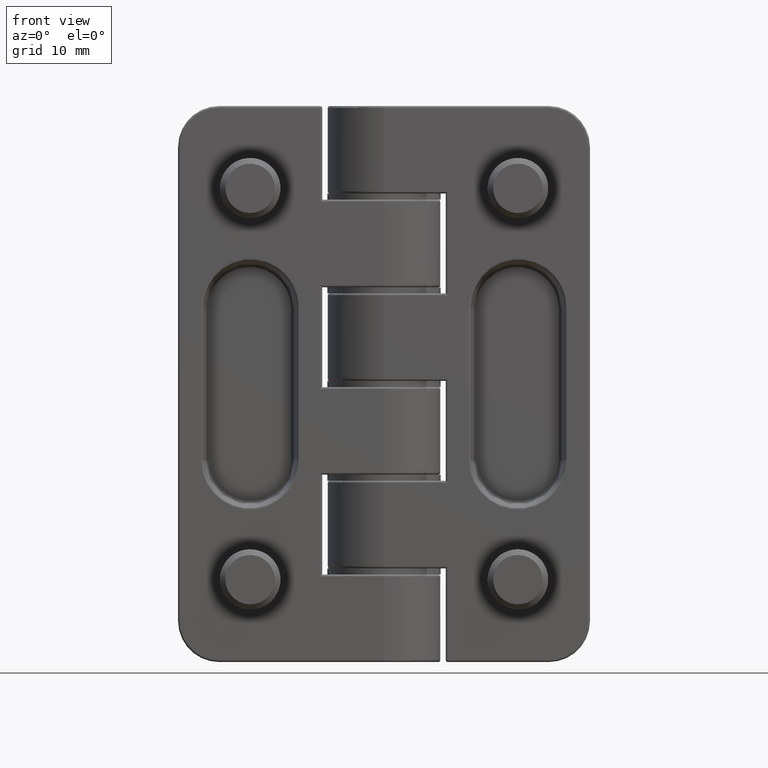
[diagram: clean part render]
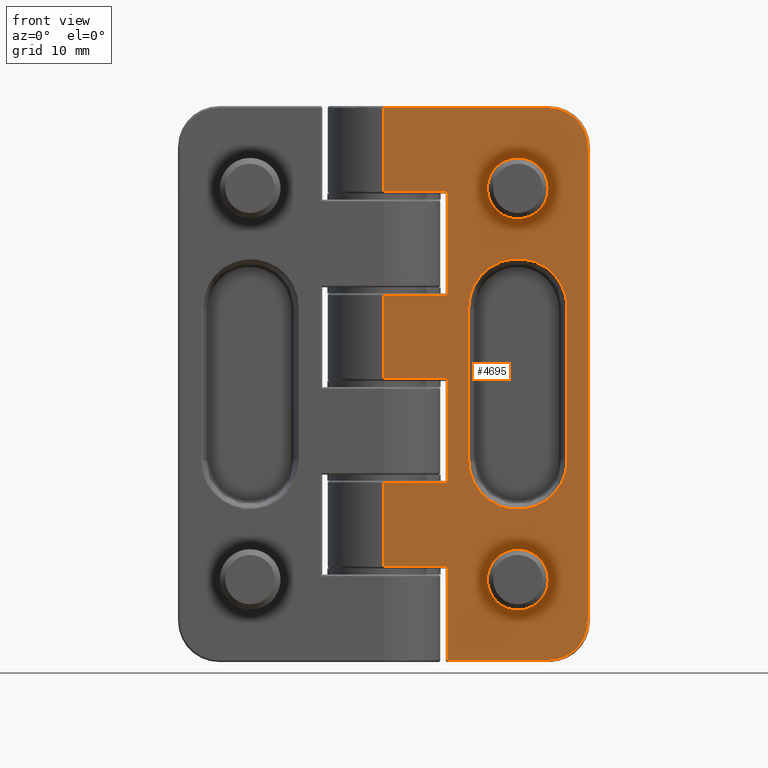
[diagram: same view with one face highlighted and labeled with its STEP entity id]
A machine part, front view. The second image highlights one B-rep face of the part: STEP entity #4695.
In plain terms, the highlighted planar face has unit normal (0, -1, 0).
Its self-contained STEP definition (entity closure, byte-faithful):
#114=FACE_BOUND('',#1021,.T.);
#115=FACE_BOUND('',#1022,.T.);
#116=FACE_BOUND('',#1023,.T.);
#197=LINE('',#17166,#405);
#199=LINE('',#17174,#407);
#201=LINE('',#17180,#409);
#202=LINE('',#17182,#410);
#203=LINE('',#17184,#411);
#204=LINE('',#17186,#412);
#205=LINE('',#17188,#413);
#206=LINE('',#17192,#414);
#207=LINE('',#17196,#415);
#208=LINE('',#17198,#416);
#209=LINE('',#17200,#417);
#210=LINE('',#17202,#418);
#211=LINE('',#17204,#419);
#212=LINE('',#17206,#420);
#213=LINE('',#17208,#421);
#214=LINE('',#17209,#422);
#405=VECTOR('',#5524,14.8);
#407=VECTOR('',#5536,14.8);
#409=VECTOR('',#5542,6.2);
#410=VECTOR('',#5543,8.10000000000001);
#411=VECTOR('',#5544,6.2);
#412=VECTOR('',#5545,9.09999999999999);
#413=VECTOR('',#5546,9.8);
#414=VECTOR('',#5549,46.);
#415=VECTOR('',#5552,16.);
#416=VECTOR('',#5553,8.1);
#417=VECTOR('',#5554,6.2);
#418=VECTOR('',#5555,10.1);
#419=VECTOR('',#5556,6.2);
#420=VECTOR('',#5557,8.10000000000001);
#421=VECTOR('',#5558,6.2);
#422=VECTOR('',#5559,10.1);
#656=PLANE('',#4989);
#753=FACE_OUTER_BOUND('',#1020,.T.);
#1020=EDGE_LOOP('',(#3345,#3346,#3347,#3348,#3349,#3350,#3351,#3352,#3353,
#3354,#3355,#3356,#3357,#3358,#3359,#3360));
#1021=EDGE_LOOP('',(#3361,#3362,#3363,#3364));
#1022=EDGE_LOOP('',(#3365,#3366,#3367,#3368,#3369));
#1023=EDGE_LOOP('',(#3370,#3371,#3372,#3373));
#1330=CIRCLE('',#4946,2.942);
#1333=CIRCLE('',#4950,2.37175);
#1334=CIRCLE('',#4952,2.942);
#1336=CIRCLE('',#4955,2.37175);
#1351=CIRCLE('',#4980,4.77345908033901);
#1354=CIRCLE('',#4985,4.77345908033901);
#1356=CIRCLE('',#4990,3.8);
#1357=CIRCLE('',#4991,3.8);
#1664=B_SPLINE_CURVE_WITH_KNOTS('',3,(#15838,#15839,#15840,#15841,#15842,
#15843,#15844,#15845,#15846,#15847,#15848,#15849,#15850,#15851,#15852,#15853,
#15854,#15855,#15856,#15857,#15858,#15859,#15860,#15861,#15862,#15863,#15864,
#15865,#15866,#15867,#15868,#15869,#15870,#15871,#15872,#15873,#15874,#15875,
#15876,#15877,#15878,#15879,#15880,#15881,#15882,#15883,#15884,#15885,#15886,
#15887,#15888,#15889,#15890,#15891,#15892,#15893,#15894,#15895,#15896,#15897,
#15898,#15899,#15900,#15901),.UNSPECIFIED.,.F.,.F.,(4,3,3,3,3,3,3,3,3,3,
3,3,3,3,3,3,3,3,3,3,3,4),(-0.555272788399404,-0.532672486366689,-0.507874511396308,
-0.49913641180638,-0.491882568340282,-0.48698173098035,-0.461058985048417,
-0.438376582357975,-0.426604669968689,-0.422113840899168,-0.346297641734306,
-0.32962317218195,-0.325471987866625,-0.321107530800513,-0.293195790396058,
-0.279599763524881,-0.225100617131291,-0.22079372348938,-0.216654267491526,
-0.11424069408634,-0.10959335427989,0.),.UNSPECIFIED.);
#1665=B_SPLINE_CURVE_WITH_KNOTS('',3,(#15902,#15903,#15904,#15905),
 .UNSPECIFIED.,.F.,.F.,(4,4),(-0.0112716551158977,0.),.UNSPECIFIED.);
#1666=B_SPLINE_CURVE_WITH_KNOTS('',3,(#16218,#16219,#16220,#16221,#16222,
#16223,#16224,#16225,#16226,#16227,#16228,#16229,#16230,#16231,#16232,#16233,
#16234,#16235,#16236,#16237,#16238,#16239,#16240,#16241,#16242,#16243,#16244,
#16245,#16246,#16247,#16248,#16249,#16250,#16251,#16252,#16253,#16254,#16255,
#16256,#16257,#16258,#16259,#16260,#16261,#16262,#16263,#16264,#16265,#16266,
#16267,#16268,#16269,#16270,#16271,#16272,#16273,#16274,#16275,#16276,#16277,
#16278,#16279,#16280,#16281),.UNSPECIFIED.,.F.,.F.,(4,3,3,3,3,3,3,3,3,3,
3,3,3,3,3,3,3,3,3,3,3,4),(-0.552745378375047,-0.525265029046958,-0.495831196152874,
-0.479661784903317,-0.47208614214534,-0.418869029967583,-0.408292252417718,
-0.401945906381529,-0.397412510122252,-0.313878618295944,-0.297711251109755,
-0.291373116164104,-0.264563284144036,-0.249640589169738,-0.194473477234113,
-0.189297918925134,-0.109868419679923,-0.101893771205644,-0.0951262541075995,
-0.0911909814845817,-0.0160898264401455,0.),.UNSPECIFIED.);
#1670=B_SPLINE_CURVE_WITH_KNOTS('',3,(#16696,#16697,#16698,#16699,#16700,
#16701,#16702,#16703,#16704,#16705,#16706,#16707,#16708,#16709,#16710,#16711,
#16712,#16713,#16714,#16715,#16716,#16717,#16718,#16719,#16720,#16721,#16722,
#16723,#16724,#16725,#16726,#16727,#16728,#16729,#16730,#16731,#16732,#16733,
#16734,#16735,#16736,#16737,#16738,#16739,#16740,#16741,#16742,#16743,#16744,
#16745,#16746,#16747,#16748,#16749,#16750,#16751,#16752,#16753),
 .UNSPECIFIED.,.F.,.F.,(4,3,3,3,3,3,3,3,3,3,3,3,3,3,3,3,3,3,3,4),(-0.555272788399396,
-0.532672486366683,-0.507875903701008,-0.499139532064783,-0.491898868422727,
-0.487007117829045,-0.438396019164007,-0.426639047629717,-0.422135080882545,
-0.346314807461434,-0.329636046477296,-0.325051695832608,-0.321041890336689,
-0.279599763524882,-0.225101994027732,-0.220794784124101,-0.216654428277234,
-0.114244424912385,-0.109592609514556,0.),.UNSPECIFIED.);
#1671=B_SPLINE_CURVE_WITH_KNOTS('',3,(#17066,#17067,#17068,#17069,#17070,
#17071,#17072,#17073,#17074,#17075,#17076,#17077,#17078,#17079,#17080,#17081,
#17082,#17083,#17084,#17085,#17086,#17087,#17088,#17089,#17090,#17091,#17092,
#17093,#17094,#17095,#17096,#17097,#17098,#17099,#17100,#17101,#17102,#17103,
#17104,#17105,#17106,#17107,#17108,#17109,#17110,#17111,#17112,#17113,#17114,
#17115,#17116,#17117,#17118,#17119,#17120),.UNSPECIFIED.,.F.,.F.,(4,3,3,
3,3,3,3,3,3,3,3,3,3,3,3,3,3,3,4),(-0.552745378375034,-0.525265029046942,
-0.479662240831494,-0.472086169217545,-0.41886906149072,-0.408292281970658,
-0.401947045536937,-0.397413558662455,-0.297717371381316,-0.291370633131909,
-0.249640589169726,-0.194474137875694,-0.18929792903079,-0.109866335501049,
-0.101890187807039,-0.0951161422711682,-0.0911820112457902,-0.0160751570081444,
0.),.UNSPECIFIED.);
#1849=VERTEX_POINT('',#6637);
#1850=VERTEX_POINT('',#6644);
#1885=VERTEX_POINT('',#9017);
#1886=VERTEX_POINT('',#9037);
#1893=VERTEX_POINT('',#10886);
#1894=VERTEX_POINT('',#10893);
#1920=VERTEX_POINT('',#11408);
#1922=VERTEX_POINT('',#11740);
#1936=VERTEX_POINT('',#15837);
#1949=VERTEX_POINT('',#17157);
#1950=VERTEX_POINT('',#17159);
#1952=VERTEX_POINT('',#17164);
#1953=VERTEX_POINT('',#17169);
#1954=VERTEX_POINT('',#17178);
#1955=VERTEX_POINT('',#17179);
#1956=VERTEX_POINT('',#17181);
#1957=VERTEX_POINT('',#17183);
#1958=VERTEX_POINT('',#17185);
#1959=VERTEX_POINT('',#17187);
#1960=VERTEX_POINT('',#17189);
#1961=VERTEX_POINT('',#17191);
#1962=VERTEX_POINT('',#17193);
#1963=VERTEX_POINT('',#17195);
#1964=VERTEX_POINT('',#17197);
#1965=VERTEX_POINT('',#17199);
#1966=VERTEX_POINT('',#17201);
#1967=VERTEX_POINT('',#17203);
#1968=VERTEX_POINT('',#17205);
#1969=VERTEX_POINT('',#17207);
#2377=EDGE_CURVE('',#1850,#1849,#1330,.T.);
#2413=EDGE_CURVE('',#1886,#1885,#1333,.T.);
#2421=EDGE_CURVE('',#1894,#1893,#1334,.T.);
#2449=EDGE_CURVE('',#1922,#1920,#1336,.T.);
#2467=EDGE_CURVE('',#1936,#1894,#1664,.T.);
#2468=EDGE_CURVE('',#1936,#1920,#1665,.T.);
#2469=EDGE_CURVE('',#1893,#1922,#1666,.T.);
#2474=EDGE_CURVE('',#1885,#1850,#1670,.T.);
#2475=EDGE_CURVE('',#1849,#1886,#1671,.T.);
#2495=EDGE_CURVE('',#1950,#1949,#1351,.T.);
#2497=EDGE_CURVE('',#1952,#1950,#197,.T.);
#2500=EDGE_CURVE('',#1953,#1952,#1354,.T.);
#2502=EDGE_CURVE('',#1949,#1953,#199,.T.);
#2504=EDGE_CURVE('',#1954,#1955,#201,.T.);
#2505=EDGE_CURVE('',#1954,#1956,#202,.T.);
#2506=EDGE_CURVE('',#1957,#1956,#203,.T.);
#2507=EDGE_CURVE('',#1958,#1957,#204,.T.);
#2508=EDGE_CURVE('',#1959,#1958,#205,.T.);
#2509=EDGE_CURVE('',#1960,#1959,#1356,.T.);
#2510=EDGE_CURVE('',#1961,#1960,#206,.T.);
#2511=EDGE_CURVE('',#1962,#1961,#1357,.T.);
#2512=EDGE_CURVE('',#1963,#1962,#207,.T.);
#2513=EDGE_CURVE('',#1963,#1964,#208,.T.);
#2514=EDGE_CURVE('',#1965,#1964,#209,.T.);
#2515=EDGE_CURVE('',#1966,#1965,#210,.T.);
#2516=EDGE_CURVE('',#1967,#1966,#211,.T.);
#2517=EDGE_CURVE('',#1967,#1968,#212,.T.);
#2518=EDGE_CURVE('',#1969,#1968,#213,.T.);
#2519=EDGE_CURVE('',#1955,#1969,#214,.T.);
#3345=ORIENTED_EDGE('',*,*,#2504,.F.);
#3346=ORIENTED_EDGE('',*,*,#2505,.T.);
#3347=ORIENTED_EDGE('',*,*,#2506,.F.);
#3348=ORIENTED_EDGE('',*,*,#2507,.F.);
#3349=ORIENTED_EDGE('',*,*,#2508,.F.);
#3350=ORIENTED_EDGE('',*,*,#2509,.F.);
#3351=ORIENTED_EDGE('',*,*,#2510,.F.);
#3352=ORIENTED_EDGE('',*,*,#2511,.F.);
#3353=ORIENTED_EDGE('',*,*,#2512,.F.);
#3354=ORIENTED_EDGE('',*,*,#2513,.T.);
#3355=ORIENTED_EDGE('',*,*,#2514,.F.);
#3356=ORIENTED_EDGE('',*,*,#2515,.F.);
#3357=ORIENTED_EDGE('',*,*,#2516,.F.);
#3358=ORIENTED_EDGE('',*,*,#2517,.T.);
#3359=ORIENTED_EDGE('',*,*,#2518,.F.);
#3360=ORIENTED_EDGE('',*,*,#2519,.F.);
#3361=ORIENTED_EDGE('',*,*,#2377,.T.);
#3362=ORIENTED_EDGE('',*,*,#2475,.T.);
#3363=ORIENTED_EDGE('',*,*,#2413,.T.);
#3364=ORIENTED_EDGE('',*,*,#2474,.T.);
#3365=ORIENTED_EDGE('',*,*,#2421,.T.);
#3366=ORIENTED_EDGE('',*,*,#2469,.T.);
#3367=ORIENTED_EDGE('',*,*,#2449,.T.);
#3368=ORIENTED_EDGE('',*,*,#2468,.F.);
#3369=ORIENTED_EDGE('',*,*,#2467,.T.);
#3370=ORIENTED_EDGE('',*,*,#2495,.F.);
#3371=ORIENTED_EDGE('',*,*,#2497,.F.);
#3372=ORIENTED_EDGE('',*,*,#2500,.F.);
#3373=ORIENTED_EDGE('',*,*,#2502,.F.);
#4695=ADVANCED_FACE('',(#753,#114,#115,#116),#656,.T.);
#4946=AXIS2_PLACEMENT_3D('',#6645,#5442,#5443);
#4950=AXIS2_PLACEMENT_3D('',#9038,#5450,#5451);
#4952=AXIS2_PLACEMENT_3D('',#10894,#5454,#5455);
#4955=AXIS2_PLACEMENT_3D('',#11741,#5460,#5461);
#4980=AXIS2_PLACEMENT_3D('',#17161,#5518,#5519);
#4985=AXIS2_PLACEMENT_3D('',#17171,#5530,#5531);
#4989=AXIS2_PLACEMENT_3D('',#17177,#5540,#5541);
#4990=AXIS2_PLACEMENT_3D('',#17190,#5547,#5548);
#4991=AXIS2_PLACEMENT_3D('',#17194,#5550,#5551);
#5442=DIRECTION('center_axis',(-5.55111512312578E-16,1.,0.));
#5443=DIRECTION('ref_axis',(-1.,-5.55111512312578E-16,8.67361737988404E-18));
#5450=DIRECTION('center_axis',(-5.14595679172404E-16,1.,0.));
#5451=DIRECTION('ref_axis',(-1.,-5.14595679172404E-16,-7.53645649687573E-14));
#5454=DIRECTION('center_axis',(-5.55111512312578E-16,1.,0.));
#5455=DIRECTION('ref_axis',(-1.,-5.55111512312578E-16,8.67361737988404E-18));
#5460=DIRECTION('center_axis',(-7.46637162824825E-16,1.,3.85390418526894E-65));
#5461=DIRECTION('ref_axis',(-1.,-7.46637162824825E-16,-5.75766552245785E-14));
#5518=DIRECTION('center_axis',(5.55111512312578E-16,-1.,0.));
#5519=DIRECTION('ref_axis',(-2.41352831440252E-17,-1.33977735261721E-32,
1.));
#5524=DIRECTION('',(0.,0.,1.));
#5530=DIRECTION('center_axis',(5.55111512312578E-16,-1.,0.));
#5531=DIRECTION('ref_axis',(-2.41352831440252E-17,-1.33977735261721E-32,
-1.));
#5536=DIRECTION('',(2.5378112423387E-16,1.4087682366985E-31,-1.));
#5540=DIRECTION('center_axis',(5.55111512312578E-16,-1.,0.));
#5541=DIRECTION('ref_axis',(0.,0.,-1.));
#5542=DIRECTION('',(1.,5.55111512312578E-16,0.));
#5543=DIRECTION('',(0.,0.,-1.));
#5544=DIRECTION('',(-1.,-5.55111512312578E-16,0.));
#5545=DIRECTION('',(0.,0.,1.));
#5546=DIRECTION('',(-1.,-5.55111512312578E-16,0.));
#5547=DIRECTION('center_axis',(-5.55111512312578E-16,1.,0.));
#5548=DIRECTION('ref_axis',(0.707106781186547,3.92523114670943E-16,-0.707106781186548));
#5549=DIRECTION('',(0.,0.,-1.));
#5550=DIRECTION('center_axis',(-5.55111512312578E-16,1.,0.));
#5551=DIRECTION('ref_axis',(0.707106781186547,3.92523114670943E-16,0.707106781186548));
#5552=DIRECTION('',(1.,5.55111512312578E-16,0.));
#5553=DIRECTION('',(0.,0.,-1.));
#5554=DIRECTION('',(-1.,-5.55111512312578E-16,0.));
#5555=DIRECTION('',(0.,0.,1.));
#5556=DIRECTION('',(1.,5.55111512312578E-16,1.0035750557255E-16));
#5557=DIRECTION('',(0.,0.,-1.));
#5558=DIRECTION('',(-1.,-5.55111512312578E-16,0.));
#5559=DIRECTION('',(0.,0.,1.));
#6637=CARTESIAN_POINT('',(11.7092561457524,-5.50007618789231,-10.6484175058422));
#6644=CARTESIAN_POINT('',(14.2889218540532,-5.5,-10.6446255791972));
#6645=CARTESIAN_POINT('Origin',(13.,-5.5,-8.));
#9017=CARTESIAN_POINT('',(14.3769773970285,-5.5000788273421,-6.06890411668072));
#9037=CARTESIAN_POINT('',(11.622975209869,-5.5,-6.06893791144235));
#9038=CARTESIAN_POINT('Origin',(13.,-5.5,-8.));
#10886=CARTESIAN_POINT('',(11.709260361262,-5.50007867280724,-48.648408620066));
#10893=CARTESIAN_POINT('',(14.2889218540532,-5.5,-48.6446255791972));
#10894=CARTESIAN_POINT('Origin',(13.,-5.5,-46.));
#11408=CARTESIAN_POINT('',(14.35556981525,-5.5,-44.0538169308919));
#11740=CARTESIAN_POINT('',(11.622975209869,-5.5,-44.0689379114423));
#11741=CARTESIAN_POINT('Origin',(13.,-5.5,-46.));
#15837=CARTESIAN_POINT('',(14.378379903111,-5.49905966326351,-44.0678456367479));
#15838=CARTESIAN_POINT('Ctrl Pts',(14.3799294673867,-5.50000000000002,-44.0668444409974));
#15839=CARTESIAN_POINT('Ctrl Pts',(14.4457115754176,-5.49999999999999,-44.1025450092549));
#15840=CARTESIAN_POINT('Ctrl Pts',(14.5095432461964,-5.49999999999999,-44.1414337726511));
#15841=CARTESIAN_POINT('Ctrl Pts',(14.5711594373285,-5.5,-44.1834527198918));
#15842=CARTESIAN_POINT('Ctrl Pts',(14.6387672402354,-5.50000000000001,-44.2295576259434));
#15843=CARTESIAN_POINT('Ctrl Pts',(14.7037090899733,-5.5,-44.2794299877882));
#15844=CARTESIAN_POINT('Ctrl Pts',(14.7659017870152,-5.49999999999999,-44.3327146698264));
#15845=CARTESIAN_POINT('Ctrl Pts',(14.7878167208421,-5.49999999999999,-44.3514906730615));
#15846=CARTESIAN_POINT('Ctrl Pts',(14.8093901274806,-5.49999999999999,-44.370690813869));
#15847=CARTESIAN_POINT('Ctrl Pts',(14.8306177323904,-5.49999999999999,-44.3903009301055));
#15848=CARTESIAN_POINT('Ctrl Pts',(14.8482396101902,-5.49999999999999,-44.4065800663259));
#15849=CARTESIAN_POINT('Ctrl Pts',(14.8656231794022,-5.49999999999998,-44.4231417429459));
#15850=CARTESIAN_POINT('Ctrl Pts',(14.8827657921775,-5.5,-44.4399781946793));
#15851=CARTESIAN_POINT('Ctrl Pts',(14.8943476739108,-5.5,-44.4513532280736));
#15852=CARTESIAN_POINT('Ctrl Pts',(14.9058157466125,-5.50000000000001,-44.4628500183032));
#15853=CARTESIAN_POINT('Ctrl Pts',(14.9171638487351,-5.50000000000001,-44.4744601315398));
#15854=CARTESIAN_POINT('Ctrl Pts',(14.977189094735,-5.50000000000001,-44.5358712728548));
#15855=CARTESIAN_POINT('Ctrl Pts',(15.0339078535088,-5.50000000000002,-44.6004960308779));
#15856=CARTESIAN_POINT('Ctrl Pts',(15.0872307386462,-5.50000000000001,-44.6679358933991));
#15857=CARTESIAN_POINT('Ctrl Pts',(15.1338882631415,-5.50000000000001,-44.7269457731051));
#15858=CARTESIAN_POINT('Ctrl Pts',(15.1779457435798,-5.49999999999997,-44.7881121188668));
#15859=CARTESIAN_POINT('Ctrl Pts',(15.2193265039805,-5.49999999999998,-44.8511970983115));
#15860=CARTESIAN_POINT('Ctrl Pts',(15.2408026541348,-5.49999999999999,-44.8839374945226));
#15861=CARTESIAN_POINT('Ctrl Pts',(15.261557547629,-5.49999999999997,-44.9171950813092));
#15862=CARTESIAN_POINT('Ctrl Pts',(15.2815784238585,-5.49999999999999,-44.9509389613063));
#15863=CARTESIAN_POINT('Ctrl Pts',(15.2892161236642,-5.5,-44.9638118057684));
#15864=CARTESIAN_POINT('Ctrl Pts',(15.2967466613593,-5.49999999999998,-44.976755044821));
#15865=CARTESIAN_POINT('Ctrl Pts',(15.3041626697617,-5.49999999999998,-44.9897549227107));
#15866=CARTESIAN_POINT('Ctrl Pts',(15.4293630640188,-5.50000000000001,-45.2092247168057));
#15867=CARTESIAN_POINT('Ctrl Pts',(15.5226182189425,-5.49999999999996,-45.4454914906383));
#15868=CARTESIAN_POINT('Ctrl Pts',(15.5811090917789,-5.49999999999998,-45.6901207080406));
#15869=CARTESIAN_POINT('Ctrl Pts',(15.5939731536673,-5.49999999999999,-45.7439226986722));
#15870=CARTESIAN_POINT('Ctrl Pts',(15.6051463396455,-5.50000000000002,-45.798137273259));
#15871=CARTESIAN_POINT('Ctrl Pts',(15.6145810699177,-5.49999999999999,-45.8526855606213));
#15872=CARTESIAN_POINT('Ctrl Pts',(15.6169298885234,-5.49999999999998,-45.866265602506));
#15873=CARTESIAN_POINT('Ctrl Pts',(15.6191709236638,-5.50000000000001,-45.87986633693));
#15874=CARTESIAN_POINT('Ctrl Pts',(15.6213033662696,-5.49999999999999,-45.8934865635122));
#15875=CARTESIAN_POINT('Ctrl Pts',(15.6235453660201,-5.49999999999998,-45.9078065477946));
#15876=CARTESIAN_POINT('Ctrl Pts',(15.6256661279688,-5.5,-45.9221406449492));
#15877=CARTESIAN_POINT('Ctrl Pts',(15.6276642723582,-5.5,-45.936481024862));
#15878=CARTESIAN_POINT('Ctrl Pts',(15.6404428807032,-5.49999999999999,-46.0281911632283));
#15879=CARTESIAN_POINT('Ctrl Pts',(15.6482226319372,-5.50000000000001,-46.1202361549389));
#15880=CARTESIAN_POINT('Ctrl Pts',(15.650876305265,-5.50000000000002,-46.2122201376386));
#15881=CARTESIAN_POINT('Ctrl Pts',(15.6521689302805,-5.50000000000002,-46.2570262544332));
#15882=CARTESIAN_POINT('Ctrl Pts',(15.6522446372005,-5.5,-46.3018183689946));
#15883=CARTESIAN_POINT('Ctrl Pts',(15.6510848046396,-5.5,-46.3465529052602));
#15884=CARTESIAN_POINT('Ctrl Pts',(15.6464356608029,-5.50000000000002,-46.5258695588597));
#15885=CARTESIAN_POINT('Ctrl Pts',(15.622001352162,-5.50000000000004,-46.7042566009636));
#15886=CARTESIAN_POINT('Ctrl Pts',(15.5795649992092,-5.5,-46.8795763999327));
#15887=CARTESIAN_POINT('Ctrl Pts',(15.5762113896426,-5.5,-46.8934313642294));
#15888=CARTESIAN_POINT('Ctrl Pts',(15.5727449264369,-5.50000000000001,-46.9072671734976));
#15889=CARTESIAN_POINT('Ctrl Pts',(15.56916627447,-5.50000000000001,-46.9210827610211));
#15890=CARTESIAN_POINT('Ctrl Pts',(15.5657267485425,-5.50000000000002,-46.934361244632));
#15891=CARTESIAN_POINT('Ctrl Pts',(15.5621861252717,-5.50000000000002,-46.9476112456954));
#15892=CARTESIAN_POINT('Ctrl Pts',(15.5585454960437,-5.50000000000002,-46.9608316557594));
#15893=CARTESIAN_POINT('Ctrl Pts',(15.4684733105013,-5.49999999999999,-47.2879155617688));
#15894=CARTESIAN_POINT('Ctrl Pts',(15.31792240973,-5.49999999999996,-47.5969615653265));
#15895=CARTESIAN_POINT('Ctrl Pts',(15.1178977960402,-5.50000000000003,-47.8739868502188));
#15896=CARTESIAN_POINT('Ctrl Pts',(15.1088210465571,-5.50000000000003,-47.8865577486951));
#15897=CARTESIAN_POINT('Ctrl Pts',(15.0996401650054,-5.50000000000002,-47.8990633655699));
#15898=CARTESIAN_POINT('Ctrl Pts',(15.090366702777,-5.50000000000002,-47.9114880084513));
#15899=CARTESIAN_POINT('Ctrl Pts',(14.8716803416061,-5.50000000000001,-48.2044853673298));
#15900=CARTESIAN_POINT('Ctrl Pts',(14.6009446871565,-5.5,-48.4546413415957));
#15901=CARTESIAN_POINT('Ctrl Pts',(14.2889218540532,-5.5,-48.6446255791972));
#15902=CARTESIAN_POINT('Ctrl Pts',(14.3774064760157,-5.49905966326351,-44.0692101454767));
#15903=CARTESIAN_POINT('Ctrl Pts',(14.3701565660036,-5.49937310884234,-44.0640381310404));
#15904=CARTESIAN_POINT('Ctrl Pts',(14.3628775251414,-5.49968655442117,-44.0589069509957));
#15905=CARTESIAN_POINT('Ctrl Pts',(14.35556981525,-5.5,-44.0538169308919));
#16218=CARTESIAN_POINT('Ctrl Pts',(11.7079534657037,-5.5,-48.6477818644944));
#16219=CARTESIAN_POINT('Ctrl Pts',(11.6294389780742,-5.50000000000001,-48.600572456303));
#16220=CARTESIAN_POINT('Ctrl Pts',(11.5534330439981,-5.49999999999999,-48.549588457596));
#16221=CARTESIAN_POINT('Ctrl Pts',(11.4802571272503,-5.49999999999999,-48.4948202266617));
#16222=CARTESIAN_POINT('Ctrl Pts',(11.4018793861338,-5.5,-48.4361587104642));
#16223=CARTESIAN_POINT('Ctrl Pts',(11.3267475876238,-5.49999999999999,-48.373155236914));
#16224=CARTESIAN_POINT('Ctrl Pts',(11.2550404792323,-5.49999999999997,-48.306188394158));
#16225=CARTESIAN_POINT('Ctrl Pts',(11.2156483372278,-5.49999999999997,-48.2694003066364));
#16226=CARTESIAN_POINT('Ctrl Pts',(11.1772904634014,-5.5,-48.2314155962315));
#16227=CARTESIAN_POINT('Ctrl Pts',(11.1400023827439,-5.49999999999999,-48.1922940366021));
#16228=CARTESIAN_POINT('Ctrl Pts',(11.1225322860389,-5.5,-48.1739649239762));
#16229=CARTESIAN_POINT('Ctrl Pts',(11.1052931509943,-5.49999999999998,-48.1553816828725));
#16230=CARTESIAN_POINT('Ctrl Pts',(11.0883111334845,-5.49999999999998,-48.1365755259998));
#16231=CARTESIAN_POINT('Ctrl Pts',(10.9690164465919,-5.50000000000003,-48.0044666882548));
#16232=CARTESIAN_POINT('Ctrl Pts',(10.8621839759914,-5.5,-47.8611986497357));
#16233=CARTESIAN_POINT('Ctrl Pts',(10.7689566998342,-5.5,-47.7090459696027));
#16234=CARTESIAN_POINT('Ctrl Pts',(10.7504279950409,-5.5,-47.6788059775113));
#16235=CARTESIAN_POINT('Ctrl Pts',(10.7324384521879,-5.49999999999998,-47.6482144112752));
#16236=CARTESIAN_POINT('Ctrl Pts',(10.7149997343132,-5.49999999999999,-47.6172884523849));
#16237=CARTESIAN_POINT('Ctrl Pts',(10.7045360427456,-5.5,-47.5987320597887));
#16238=CARTESIAN_POINT('Ctrl Pts',(10.6942706836669,-5.49999999999998,-47.5800552735334));
#16239=CARTESIAN_POINT('Ctrl Pts',(10.6842063424878,-5.49999999999999,-47.5612618002191));
#16240=CARTESIAN_POINT('Ctrl Pts',(10.6770170643751,-5.5,-47.5478370261623));
#16241=CARTESIAN_POINT('Ctrl Pts',(10.6699307882865,-5.50000000000001,-47.5343533608396));
#16242=CARTESIAN_POINT('Ctrl Pts',(10.6629543567637,-5.50000000000001,-47.5208239778548));
#16243=CARTESIAN_POINT('Ctrl Pts',(10.5344042713916,-5.50000000000003,-47.2715269938518));
#16244=CARTESIAN_POINT('Ctrl Pts',(10.4422564029667,-5.50000000000007,-47.0057102201881));
#16245=CARTESIAN_POINT('Ctrl Pts',(10.3918740394407,-5.5,-46.7321799325156));
#16246=CARTESIAN_POINT('Ctrl Pts',(10.3821229054635,-5.49999999999999,-46.6792401675812));
#16247=CARTESIAN_POINT('Ctrl Pts',(10.3739487331351,-5.50000000000003,-46.6260116017366));
#16248=CARTESIAN_POINT('Ctrl Pts',(10.3674091147617,-5.50000000000002,-46.5725606295619));
#16249=CARTESIAN_POINT('Ctrl Pts',(10.364845371187,-5.50000000000001,-46.5516061061248));
#16250=CARTESIAN_POINT('Ctrl Pts',(10.3625323760443,-5.5,-46.5306106153029));
#16251=CARTESIAN_POINT('Ctrl Pts',(10.3604770469589,-5.5,-46.5096146510886));
#16252=CARTESIAN_POINT('Ctrl Pts',(10.3517831601929,-5.50000000000001,-46.4208033085548));
#16253=CARTESIAN_POINT('Ctrl Pts',(10.3476809970329,-5.50000000000002,-46.3318893600889));
#16254=CARTESIAN_POINT('Ctrl Pts',(10.3483473530993,-5.50000000000001,-46.2431665324447));
#16255=CARTESIAN_POINT('Ctrl Pts',(10.348718255398,-5.5,-46.1937822732222));
#16256=CARTESIAN_POINT('Ctrl Pts',(10.3505674249806,-5.50000000000001,-46.1444572585544));
#16257=CARTESIAN_POINT('Ctrl Pts',(10.3539323175367,-5.50000000000001,-46.0952432371713));
#16258=CARTESIAN_POINT('Ctrl Pts',(10.3663718537341,-5.50000000000001,-45.9133058973596));
#16259=CARTESIAN_POINT('Ctrl Pts',(10.399472366667,-5.50000000000005,-45.7328489805206));
#16260=CARTESIAN_POINT('Ctrl Pts',(10.4518250320141,-5.49999999999999,-45.5567330160941));
#16261=CARTESIAN_POINT('Ctrl Pts',(10.4567365501746,-5.49999999999999,-45.5402105190655));
#16262=CARTESIAN_POINT('Ctrl Pts',(10.4618190784841,-5.50000000000001,-45.5237235594306));
#16263=CARTESIAN_POINT('Ctrl Pts',(10.4670637689258,-5.50000000000001,-45.5072986808137));
#16264=CARTESIAN_POINT('Ctrl Pts',(10.5475542417622,-5.49999999999994,-45.2552254153191));
#16265=CARTESIAN_POINT('Ctrl Pts',(10.6662921250042,-5.50000000000003,-45.0164265685214));
#16266=CARTESIAN_POINT('Ctrl Pts',(10.8186180070051,-5.5,-44.799739349901));
#16267=CARTESIAN_POINT('Ctrl Pts',(10.833911385083,-5.5,-44.7779841529806));
#16268=CARTESIAN_POINT('Ctrl Pts',(10.8495456454444,-5.50000000000002,-44.7564543900558));
#16269=CARTESIAN_POINT('Ctrl Pts',(10.8655174550525,-5.50000000000001,-44.7351609154699));
#16270=CARTESIAN_POINT('Ctrl Pts',(10.879071594142,-5.5,-44.7170906577273));
#16271=CARTESIAN_POINT('Ctrl Pts',(10.8928688301076,-5.5,-44.6991905745019));
#16272=CARTESIAN_POINT('Ctrl Pts',(10.9069072216503,-5.5,-44.6814675530633));
#16273=CARTESIAN_POINT('Ctrl Pts',(10.9150704663246,-5.5,-44.671161717104));
#16274=CARTESIAN_POINT('Ctrl Pts',(10.9233145146094,-5.50000000000002,-44.6609167941435));
#16275=CARTESIAN_POINT('Ctrl Pts',(10.9316310306616,-5.50000000000002,-44.6507435283638));
#16276=CARTESIAN_POINT('Ctrl Pts',(11.0903442943408,-5.50000000000003,-44.456595858349));
#16277=CARTESIAN_POINT('Ctrl Pts',(11.2760412176598,-5.49999999999998,-44.2873016657997));
#16278=CARTESIAN_POINT('Ctrl Pts',(11.4852683868074,-5.50000000000003,-44.151476048765));
#16279=CARTESIAN_POINT('Ctrl Pts',(11.5300936472998,-5.50000000000003,-44.1223764882733));
#16280=CARTESIAN_POINT('Ctrl Pts',(11.576004779272,-5.50000000000001,-44.0948271184025));
#16281=CARTESIAN_POINT('Ctrl Pts',(11.622975209869,-5.5,-44.0689379114423));
#16696=CARTESIAN_POINT('Ctrl Pts',(14.3799037901827,-5.5,-6.06681665402415));
#16697=CARTESIAN_POINT('Ctrl Pts',(14.4456862623763,-5.49999999999999,-6.10251803580331));
#16698=CARTESIAN_POINT('Ctrl Pts',(14.5095186433855,-5.5,-6.14140843999652));
#16699=CARTESIAN_POINT('Ctrl Pts',(14.5711359419714,-5.5,-6.18342999843665));
#16700=CARTESIAN_POINT('Ctrl Pts',(14.6387411640524,-5.49999999999999,-6.22953518084053));
#16701=CARTESIAN_POINT('Ctrl Pts',(14.7036812098874,-5.5,-6.27940856351171));
#16702=CARTESIAN_POINT('Ctrl Pts',(14.7658727899404,-5.50000000000001,-6.33269480698763));
#16703=CARTESIAN_POINT('Ctrl Pts',(14.7877842268231,-5.50000000000001,-6.35146870145448));
#16704=CARTESIAN_POINT('Ctrl Pts',(14.8093543185979,-5.5,-6.37066668054723));
#16705=CARTESIAN_POINT('Ctrl Pts',(14.8305787889542,-5.50000000000001,-6.39027457930071));
#16706=CARTESIAN_POINT('Ctrl Pts',(14.8481695299654,-5.50000000000001,-6.40652551338561));
#16707=CARTESIAN_POINT('Ctrl Pts',(14.8655228574615,-5.49999999999999,-6.42305803521957));
#16708=CARTESIAN_POINT('Ctrl Pts',(14.8826361357871,-5.49999999999999,-6.43986441517185));
#16709=CARTESIAN_POINT('Ctrl Pts',(14.8941977679175,-5.49999999999999,-6.45121870853135));
#16710=CARTESIAN_POINT('Ctrl Pts',(14.9056461131715,-5.50000000000001,-6.46269443028157));
#16711=CARTESIAN_POINT('Ctrl Pts',(14.9169749143289,-5.50000000000001,-6.47428306560321));
#16712=CARTESIAN_POINT('Ctrl Pts',(15.0295533175557,-5.5,-6.58944353509671));
#16713=CARTESIAN_POINT('Ctrl Pts',(15.1305251451092,-5.50000000000001,-6.71587386312124));
#16714=CARTESIAN_POINT('Ctrl Pts',(15.2192254303662,-5.5,-6.85108103046232));
#16715=CARTESIAN_POINT('Ctrl Pts',(15.2406782828523,-5.49999999999999,-6.88378193336958));
#16716=CARTESIAN_POINT('Ctrl Pts',(15.2614117471386,-5.50000000000001,-6.91699880885804));
#16717=CARTESIAN_POINT('Ctrl Pts',(15.2814131044483,-5.50000000000002,-6.95070084828042));
#16718=CARTESIAN_POINT('Ctrl Pts',(15.2890754048935,-5.50000000000003,-6.96361172966068));
#16719=CARTESIAN_POINT('Ctrl Pts',(15.2966299995395,-5.49999999999999,-6.9765935656083));
#16720=CARTESIAN_POINT('Ctrl Pts',(15.3040693903912,-5.5,-6.98963237488258));
#16721=CARTESIAN_POINT('Ctrl Pts',(15.4293049172337,-5.50000000000003,-7.20912912957818));
#16722=CARTESIAN_POINT('Ctrl Pts',(15.5225923448427,-5.49999999999998,-7.44542727420241));
#16723=CARTESIAN_POINT('Ctrl Pts',(15.5811101356252,-5.5,-7.69008374121282));
#16724=CARTESIAN_POINT('Ctrl Pts',(15.5939827381858,-5.50000000000001,-7.74390268108695));
#16725=CARTESIAN_POINT('Ctrl Pts',(15.6051635169825,-5.49999999999999,-7.79813417790415));
#16726=CARTESIAN_POINT('Ctrl Pts',(15.6146048339865,-5.50000000000002,-7.85269922649849));
#16727=CARTESIAN_POINT('Ctrl Pts',(15.6171998893227,-5.50000000000002,-7.86769706212542));
#16728=CARTESIAN_POINT('Ctrl Pts',(15.6196634859704,-5.49999999999999,-7.88272010878974));
#16729=CARTESIAN_POINT('Ctrl Pts',(15.6219945315888,-5.50000000000001,-7.89776674857746));
#16730=CARTESIAN_POINT('Ctrl Pts',(15.6240334331163,-5.50000000000003,-7.91092763080312));
#16731=CARTESIAN_POINT('Ctrl Pts',(15.6259694048639,-5.50000000000002,-7.92409675712375));
#16732=CARTESIAN_POINT('Ctrl Pts',(15.6278021160496,-5.50000000000002,-7.93727275482418));
#16733=CARTESIAN_POINT('Ctrl Pts',(15.6467435458631,-5.49999999999997,-8.07344927713403));
#16734=CARTESIAN_POINT('Ctrl Pts',(15.6546733163654,-5.50000000000004,-8.21035326628105));
#16735=CARTESIAN_POINT('Ctrl Pts',(15.6511387785337,-5.50000000000002,-8.34670943456176));
#16736=CARTESIAN_POINT('Ctrl Pts',(15.6464907442061,-5.5,-8.52602231254753));
#16737=CARTESIAN_POINT('Ctrl Pts',(15.6220560490788,-5.50000000000004,-8.70439924092329));
#16738=CARTESIAN_POINT('Ctrl Pts',(15.5796186375139,-5.50000000000001,-8.87970524287833));
#16739=CARTESIAN_POINT('Ctrl Pts',(15.5762646132839,-5.50000000000001,-8.89356048419837));
#16740=CARTESIAN_POINT('Ctrl Pts',(15.5727977089346,-5.50000000000002,-8.90739654358557));
#16741=CARTESIAN_POINT('Ctrl Pts',(15.5692185899466,-5.5,-8.92121235526885));
#16742=CARTESIAN_POINT('Ctrl Pts',(15.5657781199997,-5.49999999999999,-8.93449296567835));
#16743=CARTESIAN_POINT('Ctrl Pts',(15.5622364975119,-5.5,-8.94774507057241));
#16744=CARTESIAN_POINT('Ctrl Pts',(15.5585948189279,-5.50000000000001,-8.96096754684408));
#16745=CARTESIAN_POINT('Ctrl Pts',(15.4685193930863,-5.50000000000008,-9.288020073138));
#16746=CARTESIAN_POINT('Ctrl Pts',(15.3179646233947,-5.50000000000015,-9.59702405011395));
#16747=CARTESIAN_POINT('Ctrl Pts',(15.1179405225267,-5.5,-9.87401394088793));
#16748=CARTESIAN_POINT('Ctrl Pts',(15.1088547383085,-5.49999999999999,-9.88659577661304));
#16749=CARTESIAN_POINT('Ctrl Pts',(15.0996646179263,-5.49999999999999,-9.89911222098353));
#16750=CARTESIAN_POINT('Ctrl Pts',(15.0903817409696,-5.49999999999999,-9.91154754711193));
#16751=CARTESIAN_POINT('Ctrl Pts',(14.8716854638216,-5.5,-10.2045127067379));
#16752=CARTESIAN_POINT('Ctrl Pts',(14.6009425667375,-5.49999999999996,-10.4546426326748));
#16753=CARTESIAN_POINT('Ctrl Pts',(14.2889218540532,-5.5,-10.6446255791972));
#17066=CARTESIAN_POINT('Ctrl Pts',(11.7079905228548,-5.5,-10.6478105207799));
#17067=CARTESIAN_POINT('Ctrl Pts',(11.6294751863758,-5.5,-10.6006000124627));
#17068=CARTESIAN_POINT('Ctrl Pts',(11.5534678308101,-5.49999999999997,-10.5496140026305));
#17069=CARTESIAN_POINT('Ctrl Pts',(11.4802898292913,-5.49999999999998,-10.4948426874776));
#17070=CARTESIAN_POINT('Ctrl Pts',(11.3588532032335,-5.50000000000001,-10.4039513871022));
#17071=CARTESIAN_POINT('Ctrl Pts',(11.2451936928749,-5.50000000000001,-10.3026414468117));
#17072=CARTESIAN_POINT('Ctrl Pts',(11.1400230266356,-5.49999999999999,-10.1922966530059));
#17073=CARTESIAN_POINT('Ctrl Pts',(11.1225508384143,-5.49999999999998,-10.1739648778489));
#17074=CARTESIAN_POINT('Ctrl Pts',(11.1053096044966,-5.5,-10.1553788920736));
#17075=CARTESIAN_POINT('Ctrl Pts',(11.0883254883619,-5.5,-10.1365699194068));
#17076=CARTESIAN_POINT('Ctrl Pts',(10.9690228228063,-5.49999999999997,-10.0044487917766));
#17077=CARTESIAN_POINT('Ctrl Pts',(10.8621809628286,-5.5,-9.86116621532841));
#17078=CARTESIAN_POINT('Ctrl Pts',(10.7689439539172,-5.5,-9.70899851115483));
#17079=CARTESIAN_POINT('Ctrl Pts',(10.7504133097599,-5.5,-9.67875552490726));
#17080=CARTESIAN_POINT('Ctrl Pts',(10.7324218143037,-5.50000000000002,-9.64816094518616));
#17081=CARTESIAN_POINT('Ctrl Pts',(10.714981139112,-5.49999999999999,-9.61723196756507));
#17082=CARTESIAN_POINT('Ctrl Pts',(10.7045181047408,-5.49999999999998,-9.59867701184468));
#17083=CARTESIAN_POINT('Ctrl Pts',(10.6942533317465,-5.5,-9.58000170272094));
#17084=CARTESIAN_POINT('Ctrl Pts',(10.684189505979,-5.50000000000001,-9.56120974792102));
#17085=CARTESIAN_POINT('Ctrl Pts',(10.6769991951843,-5.50000000000001,-9.54778344279887));
#17086=CARTESIAN_POINT('Ctrl Pts',(10.6699118877175,-5.50000000000001,-9.53429823937996));
#17087=CARTESIAN_POINT('Ctrl Pts',(10.6629344308695,-5.50000000000001,-9.52076731953098));
#17088=CARTESIAN_POINT('Ctrl Pts',(10.5094927503425,-5.50000000000003,-9.22320803311441));
#17089=CARTESIAN_POINT('Ctrl Pts',(10.4076898135802,-5.50000000000012,-8.90210452479395));
#17090=CARTESIAN_POINT('Ctrl Pts',(10.3673457868083,-5.5,-8.57248606332871));
#17091=CARTESIAN_POINT('Ctrl Pts',(10.3647774541084,-5.49999999999999,-8.55150229098853));
#17092=CARTESIAN_POINT('Ctrl Pts',(10.3624605799286,-5.49999999999998,-8.53047748653633));
#17093=CARTESIAN_POINT('Ctrl Pts',(10.360402108089,-5.49999999999998,-8.50945226189426));
#17094=CARTESIAN_POINT('Ctrl Pts',(10.3468675779119,-5.49999999999999,-8.37121061490182));
#17095=CARTESIAN_POINT('Ctrl Pts',(10.3444444091317,-5.50000000000003,-8.23272097043732));
#17096=CARTESIAN_POINT('Ctrl Pts',(10.3538540454172,-5.50000000000001,-8.09509927213046));
#17097=CARTESIAN_POINT('Ctrl Pts',(10.3662934342255,-5.49999999999998,-7.91316558609054));
#17098=CARTESIAN_POINT('Ctrl Pts',(10.3993969913294,-5.49999999999997,-7.73271843308474));
#17099=CARTESIAN_POINT('Ctrl Pts',(10.451754430239,-5.50000000000001,-7.55661565886945));
#17100=CARTESIAN_POINT('Ctrl Pts',(10.4566670724703,-5.50000000000002,-7.54009212479896));
#17101=CARTESIAN_POINT('Ctrl Pts',(10.4617507877043,-5.50000000000001,-7.52360416683339));
#17102=CARTESIAN_POINT('Ctrl Pts',(10.4669967232536,-5.50000000000001,-7.50717833249076));
#17103=CARTESIAN_POINT('Ctrl Pts',(10.5474983090135,-5.50000000000003,-7.25511543549705));
#17104=CARTESIAN_POINT('Ctrl Pts',(10.6662533786471,-5.50000000000002,-7.0163342559971));
#17105=CARTESIAN_POINT('Ctrl Pts',(10.8185973801715,-5.50000000000001,-6.79966453211025));
#17106=CARTESIAN_POINT('Ctrl Pts',(10.8338950495554,-5.50000000000001,-6.77790757569348));
#17107=CARTESIAN_POINT('Ctrl Pts',(10.8495337208551,-5.49999999999998,-6.75637612435269));
#17108=CARTESIAN_POINT('Ctrl Pts',(10.8655100541277,-5.49999999999999,-6.73508102999751));
#17109=CARTESIAN_POINT('Ctrl Pts',(10.8790785602833,-5.5,-6.7169953645376));
#17110=CARTESIAN_POINT('Ctrl Pts',(10.8928906223042,-5.49999999999999,-6.69908018747424));
#17111=CARTESIAN_POINT('Ctrl Pts',(10.9069442901833,-5.49999999999999,-6.68134240084813));
#17112=CARTESIAN_POINT('Ctrl Pts',(10.9151061737329,-5.49999999999999,-6.67104090873123));
#17113=CARTESIAN_POINT('Ctrl Pts',(10.9233487712042,-5.5,-6.66080033656435));
#17114=CARTESIAN_POINT('Ctrl Pts',(10.9316637928044,-5.5,-6.65063136500914));
#17115=CARTESIAN_POINT('Ctrl Pts',(11.0904066285878,-5.5,-6.45649460153646));
#17116=CARTESIAN_POINT('Ctrl Pts',(11.2761348139647,-5.49999999999998,-6.28721235470959));
#17117=CARTESIAN_POINT('Ctrl Pts',(11.485390030317,-5.49999999999999,-6.15139476994655));
#17118=CARTESIAN_POINT('Ctrl Pts',(11.5301770273465,-5.5,-6.12232566537953));
#17119=CARTESIAN_POINT('Ctrl Pts',(11.5760476031981,-5.50000000000002,-6.09480351466992));
#17120=CARTESIAN_POINT('Ctrl Pts',(11.622975209869,-5.50000000000001,-6.06893791144235));
#17157=CARTESIAN_POINT('',(8.22654091966099,-5.50000000000001,-19.6));
#17159=CARTESIAN_POINT('',(17.773459080339,-5.5,-19.6));
#17161=CARTESIAN_POINT('Origin',(13.,-5.5,-19.6));
#17164=CARTESIAN_POINT('',(17.773459080339,-5.5,-34.4));
#17166=CARTESIAN_POINT('',(17.773459080339,-5.5,-17.2));
#17169=CARTESIAN_POINT('',(8.22654091966099,-5.50000000000001,-34.4));
#17171=CARTESIAN_POINT('Origin',(13.,-5.5,-34.4));
#17174=CARTESIAN_POINT('',(8.22654091966099,-5.50000000000001,-9.8));
#17177=CARTESIAN_POINT('Origin',(0.,-5.50000000000001,0.));
#17178=CARTESIAN_POINT('',(0.,-5.50000000000001,-36.6));
#17179=CARTESIAN_POINT('',(6.2,-5.50000000000001,-36.6));
#17180=CARTESIAN_POINT('',(-8.06268054682321,-5.50000000000001,-36.6));
#17181=CARTESIAN_POINT('',(0.,-5.50000000000001,-44.7));
#17182=CARTESIAN_POINT('',(0.,-5.50000000000001,0.));
#17183=CARTESIAN_POINT('',(6.2,-5.50000000000001,-44.7));
#17184=CARTESIAN_POINT('',(3.,-5.50000000000001,-44.7));
#17185=CARTESIAN_POINT('',(6.2,-5.50000000000001,-53.8));
#17186=CARTESIAN_POINT('',(6.2,-5.50000000000001,-27.));
#17187=CARTESIAN_POINT('',(16.,-5.5,-53.8));
#17188=CARTESIAN_POINT('',(3.65379327203315,-5.50000000000001,-53.8));
#17189=CARTESIAN_POINT('',(19.8,-5.5,-50.));
#17190=CARTESIAN_POINT('Origin',(16.,-5.5,-50.));
#17191=CARTESIAN_POINT('',(19.8,-5.5,-4.));
#17192=CARTESIAN_POINT('',(19.8,-5.5,0.));
#17193=CARTESIAN_POINT('',(16.,-5.5,-0.2));
#17194=CARTESIAN_POINT('Origin',(16.,-5.5,-4.));
#17195=CARTESIAN_POINT('',(0.,-5.50000000000001,-0.2));
#17196=CARTESIAN_POINT('',(3.65379327203315,-5.50000000000001,-0.2));
#17197=CARTESIAN_POINT('',(0.,-5.50000000000001,-8.3));
#17198=CARTESIAN_POINT('',(0.,-5.50000000000001,0.));
#17199=CARTESIAN_POINT('',(6.2,-5.50000000000001,-8.3));
#17200=CARTESIAN_POINT('',(3.,-5.50000000000001,-8.3));
#17201=CARTESIAN_POINT('',(6.2,-5.50000000000001,-18.4));
#17202=CARTESIAN_POINT('',(6.2,-5.50000000000001,-9.1));
#17203=CARTESIAN_POINT('',(0.,-5.50000000000001,-18.4));
#17204=CARTESIAN_POINT('',(-8.06268054682321,-5.50000000000001,-18.4));
#17205=CARTESIAN_POINT('',(0.,-5.50000000000001,-26.5));
#17206=CARTESIAN_POINT('',(0.,-5.50000000000001,0.));
#17207=CARTESIAN_POINT('',(6.2,-5.50000000000001,-26.5));
#17208=CARTESIAN_POINT('',(3.,-5.50000000000001,-26.5));
#17209=CARTESIAN_POINT('',(6.2,-5.50000000000001,-18.2));